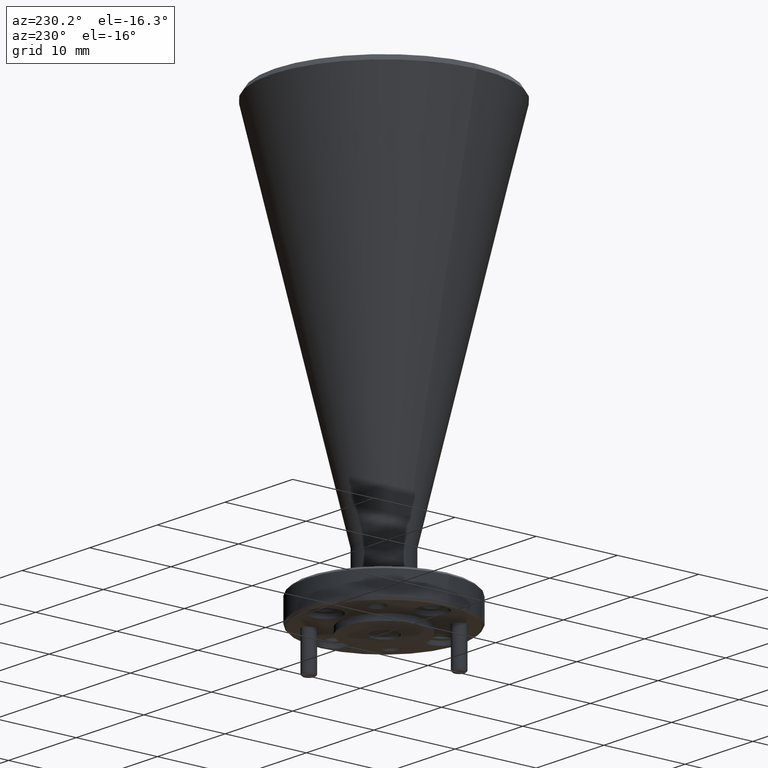
[diagram: clean part render]
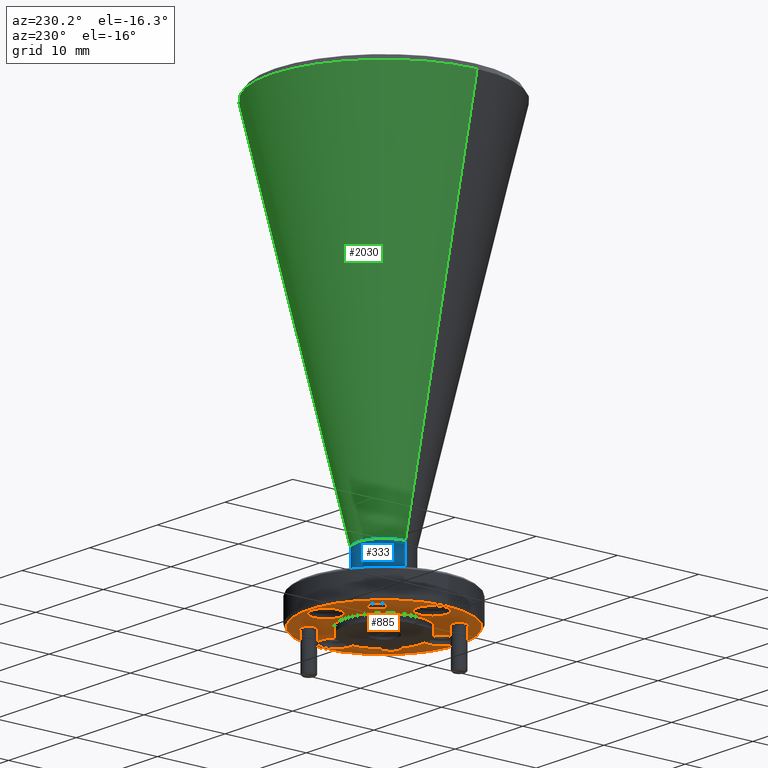
[diagram: same view with three faces highlighted in distinct colors, each labeled with its STEP entity id]
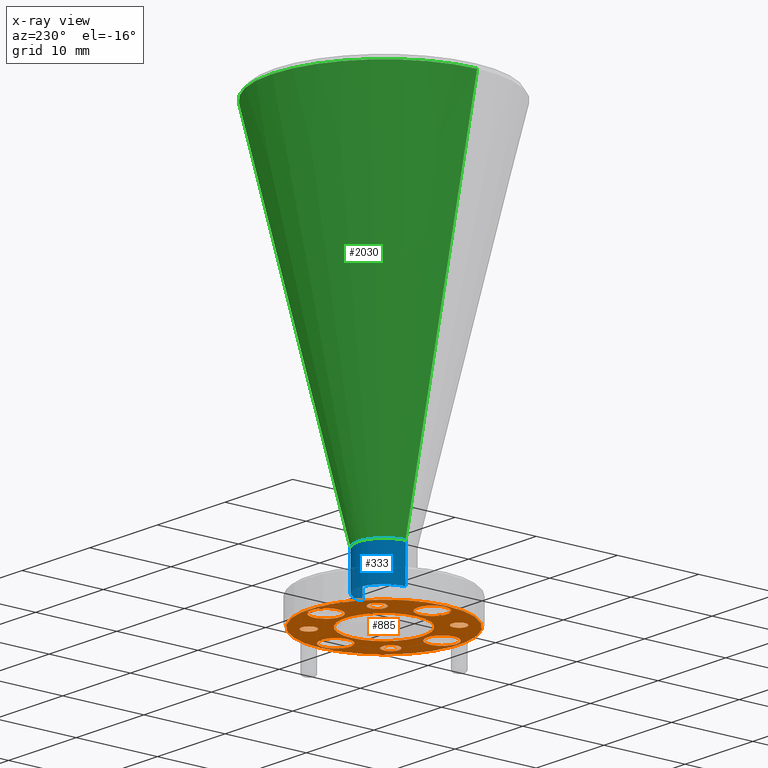
[diagram: x-ray of the same camera — body ghosted, the three highlighted faces saturated]
A machine part, auxiliary view with three faces highlighted in distinct colors.
The next image is the same camera in x-ray (body ghosted, the three faces saturated) — at least one of them is partly hidden behind the body in this view.
Their STEP definitions:

[orange] entity #885 — the highlighted planar face has unit normal (0, -0, 1).
#26 = EDGE_CURVE ( 'NONE', #391, #144, #971, .T. ) ;
#44 = EDGE_CURVE ( 'NONE', #1575, #1746, #1026, .T. ) ;
#45 = DIRECTION ( 'NONE',  ( 0.0000000000000000000, 0.0000000000000000000, -1.000000000000000000 ) ) ;
#48 = VERTEX_POINT ( 'NONE', #1759 ) ;
#68 = CIRCLE ( 'NONE', #167, 0.3650000000000017100 ) ;
#70 = FACE_BOUND ( 'NONE', #1143, .T. ) ;
#94 = AXIS2_PLACEMENT_3D ( 'NONE', #1560, #103, #1269 ) ;
#103 = DIRECTION ( 'NONE',  ( 0.0000000000000000000, 0.0000000000000000000, -1.000000000000000000 ) ) ;
#106 = ORIENTED_EDGE ( 'NONE', *, *, #1367, .T. ) ;
#144 = VERTEX_POINT ( 'NONE', #1981 ) ;
#148 = VERTEX_POINT ( 'NONE', #685 ) ;
#157 = DIRECTION ( 'NONE',  ( -1.000000000000000000, 0.0000000000000000000, 0.0000000000000000000 ) ) ;
#161 = VERTEX_POINT ( 'NONE', #848 ) ;
#164 = CIRCLE ( 'NONE', #1898, 0.03500000000000003800 ) ;
#167 = AXIS2_PLACEMENT_3D ( 'NONE', #1277, #2073, #476 ) ;
#188 = VERTEX_POINT ( 'NONE', #232 ) ;
#194 = CARTESIAN_POINT ( 'NONE',  ( -2.061298195062089400, 1.143924960471874900, -0.7094467715797542200 ) ) ;
#197 = FACE_BOUND ( 'NONE', #1427, .T. ) ;
#202 = ORIENTED_EDGE ( 'NONE', *, *, #1252, .T. ) ;
#207 = EDGE_CURVE ( 'NONE', #852, #1688, #1878, .T. ) ;
#210 = EDGE_CURVE ( 'NONE', #1855, #148, #1023, .T. ) ;
#211 = DIRECTION ( 'NONE',  ( -1.000000000000000000, 0.0000000000000000000, 0.0000000000000000000 ) ) ;
#227 = EDGE_CURVE ( 'NONE', #1746, #1575, #1583, .T. ) ;
#232 = CARTESIAN_POINT ( 'NONE',  ( -1.902424412853373200, 0.9450511782631583200, -0.7094467715797536700 ) ) ;
#242 = DIRECTION ( 'NONE',  ( 0.0000000000000000000, -0.0000000000000000000, 1.000000000000000000 ) ) ;
#260 = CARTESIAN_POINT ( 'NONE',  ( -2.061298195062089400, 0.8626749604718748600, -0.7094467715797536700 ) ) ;
#279 = AXIS2_PLACEMENT_3D ( 'NONE', #2024, #242, #1673 ) ;
#291 = DIRECTION ( 'NONE',  ( 0.0000000000000000000, 0.0000000000000000000, -1.000000000000000000 ) ) ;
#297 = CARTESIAN_POINT ( 'NONE',  ( -1.873798195062089400, 1.143924960471874900, -0.7094467715797542200 ) ) ;
#299 = CARTESIAN_POINT ( 'NONE',  ( -2.260171977270806200, 0.9450511782631583200, -0.7094467715797536700 ) ) ;
#332 = EDGE_CURVE ( 'NONE', #144, #391, #2100, .T. ) ;
#338 = ORIENTED_EDGE ( 'NONE', *, *, #1603, .F. ) ;
#341 = DIRECTION ( 'NONE',  ( -1.000000000000000000, 0.0000000000000000000, 0.0000000000000000000 ) ) ;
#366 = VERTEX_POINT ( 'NONE', #1537 ) ;
#370 = ORIENTED_EDGE ( 'NONE', *, *, #1654, .F. ) ;
#374 = CARTESIAN_POINT ( 'NONE',  ( -2.220171977270806200, 1.342798742680591400, -0.7094467715797536700 ) ) ;
#378 = DIRECTION ( 'NONE',  ( 0.0000000000000000000, 0.0000000000000000000, -1.000000000000000000 ) ) ;
#391 = VERTEX_POINT ( 'NONE', #739 ) ;
#399 = DIRECTION ( 'NONE',  ( -0.0000000000000000000, -0.0000000000000000000, 1.000000000000000000 ) ) ;
#425 = VERTEX_POINT ( 'NONE', #1563 ) ;
#430 = VERTEX_POINT ( 'NONE', #1422 ) ;
#476 = DIRECTION ( 'NONE',  ( 1.000000000000000000, 0.0000000000000000000, 0.0000000000000000000 ) ) ;
#489 = EDGE_LOOP ( 'NONE', ( #869, #1022 ) ) ;
#509 = EDGE_CURVE ( 'NONE', #161, #188, #625, .T. ) ;
#513 = CARTESIAN_POINT ( 'NONE',  ( -2.225171977270806100, 0.9450511782631583200, -0.7094467715797536700 ) ) ;
#522 = CIRCLE ( 'NONE', #1948, 0.03500000000000003800 ) ;
#555 = VERTEX_POINT ( 'NONE', #374 ) ;
#564 = DIRECTION ( 'NONE',  ( -1.000000000000000000, 0.0000000000000000000, 0.0000000000000000000 ) ) ;
#580 = DIRECTION ( 'NONE',  ( -1.000000000000000000, 0.0000000000000000000, 0.0000000000000000000 ) ) ;
#601 = VERTEX_POINT ( 'NONE', #1800 ) ;
#602 = AXIS2_PLACEMENT_3D ( 'NONE', #1599, #1584, #157 ) ;
#625 = CIRCLE ( 'NONE', #1240, 0.04000000000000011900 ) ;
#636 = AXIS2_PLACEMENT_3D ( 'NONE', #194, #1804, #986 ) ;
#653 = DIRECTION ( 'NONE',  ( -1.000000000000000000, 0.0000000000000000000, 0.0000000000000000000 ) ) ;
#667 = CIRCLE ( 'NONE', #636, 0.1875000000000001100 ) ;
#670 = DIRECTION ( 'NONE',  ( 0.0000000000000000000, 0.0000000000000000000, -1.000000000000000000 ) ) ;
#685 = CARTESIAN_POINT ( 'NONE',  ( -1.850048195062089500, 1.143924960471874900, -0.7094467715797536700 ) ) ;
#700 = FACE_OUTER_BOUND ( 'NONE', #1590, .T. ) ;
#708 = ORIENTED_EDGE ( 'NONE', *, *, #1111, .F. ) ;
#710 = CARTESIAN_POINT ( 'NONE',  ( -2.248798195062089900, 1.143924960471874900, -0.7094467715797542200 ) ) ;
#712 = AXIS2_PLACEMENT_3D ( 'NONE', #2014, #399, #1036 ) ;
#733 = ORIENTED_EDGE ( 'NONE', *, *, #26, .F. ) ;
#735 = AXIS2_PLACEMENT_3D ( 'NONE', #1095, #926, #915 ) ;
#739 = CARTESIAN_POINT ( 'NONE',  ( -1.827424412853373000, 1.342798742680591400, -0.7094467715797536700 ) ) ;
#740 = EDGE_LOOP ( 'NONE', ( #820, #1233 ) ) ;
#743 = ORIENTED_EDGE ( 'NONE', *, *, #1868, .F. ) ;
#746 = CARTESIAN_POINT ( 'NONE',  ( -1.862424412853373100, 1.342798742680591400, -0.7094467715797536700 ) ) ;
#778 = ORIENTED_EDGE ( 'NONE', *, *, #1956, .F. ) ;
#788 = EDGE_CURVE ( 'NONE', #148, #1855, #1707, .T. ) ;
#801 = FACE_BOUND ( 'NONE', #1528, .T. ) ;
#807 = CARTESIAN_POINT ( 'NONE',  ( -2.260171977270806200, 0.9450511782631583200, -0.7094467715797536700 ) ) ;
#812 = ORIENTED_EDGE ( 'NONE', *, *, #1791, .F. ) ;
#820 = ORIENTED_EDGE ( 'NONE', *, *, #1989, .F. ) ;
#838 = ORIENTED_EDGE ( 'NONE', *, *, #1323, .T. ) ;
#848 = CARTESIAN_POINT ( 'NONE',  ( -1.822424412853372900, 0.9450511782631583200, -0.7094467715797536700 ) ) ;
#852 = VERTEX_POINT ( 'NONE', #710 ) ;
#854 = DIRECTION ( 'NONE',  ( -0.0000000000000000000, -0.0000000000000000000, -1.000000000000000000 ) ) ;
#866 = VERTEX_POINT ( 'NONE', #2012 ) ;
#869 = ORIENTED_EDGE ( 'NONE', *, *, #44, .F. ) ;
#871 = CARTESIAN_POINT ( 'NONE',  ( -1.780048195062089400, 1.143924960471874900, -0.7094467715797536700 ) ) ;
#879 = CARTESIAN_POINT ( 'NONE',  ( -2.412548195062089700, 1.143924960471874900, -0.7094467715797536700 ) ) ;
#885 = ADVANCED_FACE ( 'NONE', ( #700, #197, #1229, #1492, #1178, #801, #1815, #1390, #945, #70 ), #1058, .F. ) ;
#915 = DIRECTION ( 'NONE',  ( -1.000000000000000000, 0.0000000000000000000, 0.0000000000000000000 ) ) ;
#926 = DIRECTION ( 'NONE',  ( -0.0000000000000000000, -0.0000000000000000000, -1.000000000000000000 ) ) ;
#945 = FACE_BOUND ( 'NONE', #1313, .T. ) ;
#966 = DIRECTION ( 'NONE',  ( -0.0000000000000000000, -0.0000000000000000000, -1.000000000000000000 ) ) ;
#971 = CIRCLE ( 'NONE', #1182, 0.03500000000000003800 ) ;
#986 = DIRECTION ( 'NONE',  ( 1.000000000000000000, 0.0000000000000000000, 0.0000000000000000000 ) ) ;
#989 = CARTESIAN_POINT ( 'NONE',  ( -1.862424412853373100, 0.9450511782631583200, -0.7094467715797536700 ) ) ;
#998 = AXIS2_PLACEMENT_3D ( 'NONE', #1039, #45, #211 ) ;
#999 = DIRECTION ( 'NONE',  ( -0.0000000000000000000, -0.0000000000000000000, -1.000000000000000000 ) ) ;
#1002 = CIRCLE ( 'NONE', #1883, 0.04000000000000011900 ) ;
#1004 = DIRECTION ( 'NONE',  ( -1.000000000000000000, 0.0000000000000000000, 0.0000000000000000000 ) ) ;
#1010 = DIRECTION ( 'NONE',  ( 0.0000000000000000000, 0.0000000000000000000, -1.000000000000000000 ) ) ;
#1022 = ORIENTED_EDGE ( 'NONE', *, *, #227, .F. ) ;
#1023 = CIRCLE ( 'NONE', #998, 0.07000000000000007600 ) ;
#1026 = CIRCLE ( 'NONE', #1744, 0.07000000000000007600 ) ;
#1027 = CIRCLE ( 'NONE', #94, 0.07000000000000007600 ) ;
#1028 = CIRCLE ( 'NONE', #1068, 0.07000000000000007600 ) ;
#1036 = DIRECTION ( 'NONE',  ( 1.000000000000000000, 0.0000000000000000000, 0.0000000000000000000 ) ) ;
#1039 = CARTESIAN_POINT ( 'NONE',  ( -1.780048195062089400, 1.143924960471874900, -0.7094467715797536700 ) ) ;
#1058 = PLANE ( 'NONE',  #279 ) ;
#1063 = DIRECTION ( 'NONE',  ( 0.0000000000000000000, 0.0000000000000000000, -1.000000000000000000 ) ) ;
#1068 = AXIS2_PLACEMENT_3D ( 'NONE', #260, #1063, #580 ) ;
#1077 = DIRECTION ( 'NONE',  ( -1.000000000000000000, 0.0000000000000000000, 0.0000000000000000000 ) ) ;
#1091 = VERTEX_POINT ( 'NONE', #1425 ) ;
#1095 = CARTESIAN_POINT ( 'NONE',  ( -1.862424412853373100, 0.9450511782631583200, -0.7094467715797536700 ) ) ;
#1111 = EDGE_CURVE ( 'NONE', #366, #425, #1532, .T. ) ;
#1130 = EDGE_CURVE ( 'NONE', #1354, #2025, #522, .T. ) ;
#1143 = EDGE_LOOP ( 'NONE', ( #106, #1693 ) ) ;
#1144 = DIRECTION ( 'NONE',  ( -0.0000000000000000000, -0.0000000000000000000, -1.000000000000000000 ) ) ;
#1151 = DIRECTION ( 'NONE',  ( -1.000000000000000000, 0.0000000000000000000, 0.0000000000000000000 ) ) ;
#1154 = CARTESIAN_POINT ( 'NONE',  ( -2.061298195062089400, 1.143924960471874900, -0.7094467715797536700 ) ) ;
#1165 = AXIS2_PLACEMENT_3D ( 'NONE', #1890, #291, #1077 ) ;
#1166 = CARTESIAN_POINT ( 'NONE',  ( -2.342548195062089900, 1.143924960471874900, -0.7094467715797536700 ) ) ;
#1178 = FACE_BOUND ( 'NONE', #1784, .T. ) ;
#1182 = AXIS2_PLACEMENT_3D ( 'NONE', #1817, #854, #341 ) ;
#1219 = AXIS2_PLACEMENT_3D ( 'NONE', #1154, #670, #1953 ) ;
#1229 = FACE_BOUND ( 'NONE', #740, .T. ) ;
#1232 = DIRECTION ( 'NONE',  ( -0.0000000000000000000, -0.0000000000000000000, -1.000000000000000000 ) ) ;
#1233 = ORIENTED_EDGE ( 'NONE', *, *, #1130, .F. ) ;
#1240 = AXIS2_PLACEMENT_3D ( 'NONE', #989, #1961, #1004 ) ;
#1252 = EDGE_CURVE ( 'NONE', #430, #1091, #68, .T. ) ;
#1260 = DIRECTION ( 'NONE',  ( -1.000000000000000000, 0.0000000000000000000, 0.0000000000000000000 ) ) ;
#1269 = DIRECTION ( 'NONE',  ( -1.000000000000000000, 0.0000000000000000000, 0.0000000000000000000 ) ) ;
#1277 = CARTESIAN_POINT ( 'NONE',  ( -2.061298195062089400, 1.143924960471874900, -0.7094467715797536700 ) ) ;
#1306 = CIRCLE ( 'NONE', #735, 0.04000000000000011900 ) ;
#1313 = EDGE_LOOP ( 'NONE', ( #370, #2089 ) ) ;
#1323 = EDGE_CURVE ( 'NONE', #1091, #430, #2068, .T. ) ;
#1333 = CARTESIAN_POINT ( 'NONE',  ( -2.260171977270806200, 1.342798742680591400, -0.7094467715797536700 ) ) ;
#1354 = VERTEX_POINT ( 'NONE', #513 ) ;
#1367 = EDGE_CURVE ( 'NONE', #1688, #852, #667, .T. ) ;
#1370 = CARTESIAN_POINT ( 'NONE',  ( -2.342548195062089900, 1.143924960471874900, -0.7094467715797536700 ) ) ;
#1381 = DIRECTION ( 'NONE',  ( -1.000000000000000000, 0.0000000000000000000, 0.0000000000000000000 ) ) ;
#1390 = FACE_BOUND ( 'NONE', #489, .T. ) ;
#1421 = DIRECTION ( 'NONE',  ( -0.0000000000000000000, -0.0000000000000000000, -1.000000000000000000 ) ) ;
#1422 = CARTESIAN_POINT ( 'NONE',  ( -1.696298195062087900, 1.143924960471874900, -0.7094467715797536700 ) ) ;
#1425 = CARTESIAN_POINT ( 'NONE',  ( -2.426298195062091400, 1.143924960471874900, -0.7094467715797536700 ) ) ;
#1427 = EDGE_LOOP ( 'NONE', ( #1842, #733 ) ) ;
#1434 = CARTESIAN_POINT ( 'NONE',  ( -2.295171977270806400, 0.9450511782631583200, -0.7094467715797536700 ) ) ;
#1473 = DIRECTION ( 'NONE',  ( -1.000000000000000000, 0.0000000000000000000, 0.0000000000000000000 ) ) ;
#1490 = CARTESIAN_POINT ( 'NONE',  ( -1.710048195062089400, 1.143924960471874900, -0.7094467715797536700 ) ) ;
#1492 = FACE_BOUND ( 'NONE', #1933, .T. ) ;
#1517 = DIRECTION ( 'NONE',  ( 0.0000000000000000000, 0.0000000000000000000, -1.000000000000000000 ) ) ;
#1523 = DIRECTION ( 'NONE',  ( -1.000000000000000000, 0.0000000000000000000, 0.0000000000000000000 ) ) ;
#1528 = EDGE_LOOP ( 'NONE', ( #1799, #1602 ) ) ;
#1532 = CIRCLE ( 'NONE', #602, 0.07000000000000007600 ) ;
#1537 = CARTESIAN_POINT ( 'NONE',  ( -2.131298195062089700, 0.8626749604718748600, -0.7094467715797536700 ) ) ;
#1560 = CARTESIAN_POINT ( 'NONE',  ( -2.061298195062089400, 1.425174960471875100, -0.7094467715797536700 ) ) ;
#1563 = CARTESIAN_POINT ( 'NONE',  ( -1.991298195062089600, 0.8626749604718748600, -0.7094467715797536700 ) ) ;
#1575 = VERTEX_POINT ( 'NONE', #879 ) ;
#1583 = CIRCLE ( 'NONE', #1793, 0.07000000000000007600 ) ;
#1584 = DIRECTION ( 'NONE',  ( 0.0000000000000000000, 0.0000000000000000000, -1.000000000000000000 ) ) ;
#1590 = EDGE_LOOP ( 'NONE', ( #202, #838 ) ) ;
#1599 = CARTESIAN_POINT ( 'NONE',  ( -2.061298195062089400, 0.8626749604718748600, -0.7094467715797536700 ) ) ;
#1602 = ORIENTED_EDGE ( 'NONE', *, *, #210, .F. ) ;
#1603 = EDGE_CURVE ( 'NONE', #425, #366, #1028, .T. ) ;
#1642 = ORIENTED_EDGE ( 'NONE', *, *, #509, .F. ) ;
#1654 = EDGE_CURVE ( 'NONE', #48, #866, #1027, .T. ) ;
#1673 = DIRECTION ( 'NONE',  ( 1.000000000000000000, 0.0000000000000000000, 0.0000000000000000000 ) ) ;
#1688 = VERTEX_POINT ( 'NONE', #297 ) ;
#1693 = ORIENTED_EDGE ( 'NONE', *, *, #207, .T. ) ;
#1698 = AXIS2_PLACEMENT_3D ( 'NONE', #871, #1517, #564 ) ;
#1707 = CIRCLE ( 'NONE', #1698, 0.07000000000000007600 ) ;
#1740 = AXIS2_PLACEMENT_3D ( 'NONE', #1819, #1144, #1151 ) ;
#1744 = AXIS2_PLACEMENT_3D ( 'NONE', #1166, #1010, #1473 ) ;
#1746 = VERTEX_POINT ( 'NONE', #1778 ) ;
#1759 = CARTESIAN_POINT ( 'NONE',  ( -2.131298195062089700, 1.425174960471875100, -0.7094467715797536700 ) ) ;
#1778 = CARTESIAN_POINT ( 'NONE',  ( -2.272548195062089600, 1.143924960471874900, -0.7094467715797536700 ) ) ;
#1780 = CIRCLE ( 'NONE', #1740, 0.04000000000000011900 ) ;
#1784 = EDGE_LOOP ( 'NONE', ( #778, #1642 ) ) ;
#1791 = EDGE_CURVE ( 'NONE', #555, #601, #1780, .T. ) ;
#1793 = AXIS2_PLACEMENT_3D ( 'NONE', #1370, #378, #1523 ) ;
#1799 = ORIENTED_EDGE ( 'NONE', *, *, #788, .F. ) ;
#1800 = CARTESIAN_POINT ( 'NONE',  ( -2.300171977270806200, 1.342798742680591400, -0.7094467715797536700 ) ) ;
#1804 = DIRECTION ( 'NONE',  ( -0.0000000000000000000, -0.0000000000000000000, 1.000000000000000000 ) ) ;
#1815 = FACE_BOUND ( 'NONE', #1995, .T. ) ;
#1817 = CARTESIAN_POINT ( 'NONE',  ( -1.862424412853373100, 1.342798742680591400, -0.7094467715797536700 ) ) ;
#1819 = CARTESIAN_POINT ( 'NONE',  ( -2.260171977270806200, 1.342798742680591400, -0.7094467715797536700 ) ) ;
#1825 = AXIS2_PLACEMENT_3D ( 'NONE', #746, #1232, #1381 ) ;
#1842 = ORIENTED_EDGE ( 'NONE', *, *, #332, .F. ) ;
#1855 = VERTEX_POINT ( 'NONE', #1490 ) ;
#1868 = EDGE_CURVE ( 'NONE', #601, #555, #1002, .T. ) ;
#1878 = CIRCLE ( 'NONE', #712, 0.1875000000000001100 ) ;
#1883 = AXIS2_PLACEMENT_3D ( 'NONE', #1333, #999, #653 ) ;
#1890 = CARTESIAN_POINT ( 'NONE',  ( -2.061298195062089400, 1.425174960471875100, -0.7094467715797536700 ) ) ;
#1898 = AXIS2_PLACEMENT_3D ( 'NONE', #299, #1421, #1260 ) ;
#1933 = EDGE_LOOP ( 'NONE', ( #743, #812 ) ) ;
#1948 = AXIS2_PLACEMENT_3D ( 'NONE', #807, #966, #2106 ) ;
#1953 = DIRECTION ( 'NONE',  ( 1.000000000000000000, 0.0000000000000000000, 0.0000000000000000000 ) ) ;
#1956 = EDGE_CURVE ( 'NONE', #188, #161, #1306, .T. ) ;
#1961 = DIRECTION ( 'NONE',  ( -0.0000000000000000000, -0.0000000000000000000, -1.000000000000000000 ) ) ;
#1973 = EDGE_CURVE ( 'NONE', #866, #48, #2094, .T. ) ;
#1981 = CARTESIAN_POINT ( 'NONE',  ( -1.897424412853373000, 1.342798742680591400, -0.7094467715797536700 ) ) ;
#1989 = EDGE_CURVE ( 'NONE', #2025, #1354, #164, .T. ) ;
#1995 = EDGE_LOOP ( 'NONE', ( #708, #338 ) ) ;
#2012 = CARTESIAN_POINT ( 'NONE',  ( -1.991298195062089600, 1.425174960471875100, -0.7094467715797536700 ) ) ;
#2014 = CARTESIAN_POINT ( 'NONE',  ( -2.061298195062089400, 1.143924960471874900, -0.7094467715797542200 ) ) ;
#2024 = CARTESIAN_POINT ( 'NONE',  ( -2.061298195062089400, 1.518924960471874900, -0.7094467715797536700 ) ) ;
#2025 = VERTEX_POINT ( 'NONE', #1434 ) ;
#2068 = CIRCLE ( 'NONE', #1219, 0.3650000000000017100 ) ;
#2073 = DIRECTION ( 'NONE',  ( 0.0000000000000000000, 0.0000000000000000000, -1.000000000000000000 ) ) ;
#2089 = ORIENTED_EDGE ( 'NONE', *, *, #1973, .F. ) ;
#2094 = CIRCLE ( 'NONE', #1165, 0.07000000000000007600 ) ;
#2100 = CIRCLE ( 'NONE', #1825, 0.03500000000000003800 ) ;
#2106 = DIRECTION ( 'NONE',  ( -1.000000000000000000, 0.0000000000000000000, 0.0000000000000000000 ) ) ;

[blue] entity #333 — the highlighted cylindrical surface (edge-blend (fillet) strip) has radius 3.175 mm, axis along (-0, -0, 1).
#80 = DIRECTION ( 'NONE',  ( -0.0000000000000000000, -0.0000000000000000000, 1.000000000000000000 ) ) ;
#182 = EDGE_CURVE ( 'NONE', #1736, #1000, #1631, .T. ) ;
#222 = DIRECTION ( 'NONE',  ( -0.0000000000000000000, -0.0000000000000000000, 1.000000000000000000 ) ) ;
#307 = CARTESIAN_POINT ( 'NONE',  ( -2.186298195062089400, 1.143924960471874900, 4.395099635446578100 ) ) ;
#325 = CARTESIAN_POINT ( 'NONE',  ( -1.936298195062089700, 1.143924960471874900, -0.4013685743280536700 ) ) ;
#333 = ADVANCED_FACE ( 'NONE', ( #1081 ), #1391, .T. ) ;
#349 = VERTEX_POINT ( 'NONE', #1880 ) ;
#373 = CARTESIAN_POINT ( 'NONE',  ( -2.186298195062089400, 1.143924960471874900, -0.5794467715797532200 ) ) ;
#436 = EDGE_LOOP ( 'NONE', ( #583, #1330, #1647, #1050 ) ) ;
#583 = ORIENTED_EDGE ( 'NONE', *, *, #736, .T. ) ;
#600 = AXIS2_PLACEMENT_3D ( 'NONE', #865, #1350, #1689 ) ;
#736 = EDGE_CURVE ( 'NONE', #349, #1863, #1858, .T. ) ;
#865 = CARTESIAN_POINT ( 'NONE',  ( -2.061298195062089400, 1.143924960471874900, -0.4013685743280536700 ) ) ;
#874 = AXIS2_PLACEMENT_3D ( 'NONE', #1047, #80, #2035 ) ;
#893 = LINE ( 'NONE', #1449, #1366 ) ;
#1000 = VERTEX_POINT ( 'NONE', #2042 ) ;
#1016 = CARTESIAN_POINT ( 'NONE',  ( -2.061298195062089400, 1.143924960471874900, -0.5794467715797532200 ) ) ;
#1047 = CARTESIAN_POINT ( 'NONE',  ( -2.061298195062089400, 1.143924960471874900, 4.395099635446578100 ) ) ;
#1048 = VECTOR ( 'NONE', #1123, 39.37007874015748100 ) ;
#1049 = AXIS2_PLACEMENT_3D ( 'NONE', #1016, #222, #1513 ) ;
#1050 = ORIENTED_EDGE ( 'NONE', *, *, #1060, .F. ) ;
#1060 = EDGE_CURVE ( 'NONE', #349, #1736, #893, .T. ) ;
#1081 = FACE_OUTER_BOUND ( 'NONE', #436, .T. ) ;
#1123 = DIRECTION ( 'NONE',  ( -0.0000000000000000000, -0.0000000000000000000, 1.000000000000000000 ) ) ;
#1281 = LINE ( 'NONE', #307, #1048 ) ;
#1291 = DIRECTION ( 'NONE',  ( -0.0000000000000000000, -0.0000000000000000000, 1.000000000000000000 ) ) ;
#1330 = ORIENTED_EDGE ( 'NONE', *, *, #1717, .T. ) ;
#1350 = DIRECTION ( 'NONE',  ( -0.0000000000000000000, -0.0000000000000000000, 1.000000000000000000 ) ) ;
#1366 = VECTOR ( 'NONE', #1291, 39.37007874015748100 ) ;
#1391 = CYLINDRICAL_SURFACE ( 'NONE', #874, 0.1249999999999999000 ) ;
#1449 = CARTESIAN_POINT ( 'NONE',  ( -1.936298195062089700, 1.143924960471874900, 4.395099635446578100 ) ) ;
#1513 = DIRECTION ( 'NONE',  ( 1.000000000000000000, 0.0000000000000000000, 0.0000000000000000000 ) ) ;
#1631 = CIRCLE ( 'NONE', #600, 0.1249999999999999000 ) ;
#1647 = ORIENTED_EDGE ( 'NONE', *, *, #182, .F. ) ;
#1689 = DIRECTION ( 'NONE',  ( 1.000000000000000000, 0.0000000000000000000, 0.0000000000000000000 ) ) ;
#1717 = EDGE_CURVE ( 'NONE', #1863, #1000, #1281, .T. ) ;
#1736 = VERTEX_POINT ( 'NONE', #325 ) ;
#1858 = CIRCLE ( 'NONE', #1049, 0.1249999999999999000 ) ;
#1863 = VERTEX_POINT ( 'NONE', #373 ) ;
#1880 = CARTESIAN_POINT ( 'NONE',  ( -1.936298195062089700, 1.143924960471874900, -0.5794467715797532200 ) ) ;
#2035 = DIRECTION ( 'NONE',  ( 1.000000000000000000, 0.0000000000000000000, 0.0000000000000000000 ) ) ;
#2042 = CARTESIAN_POINT ( 'NONE',  ( -2.186298195062089400, 1.143924960471874900, -0.4013685743280536700 ) ) ;

[green] entity #2030 — the highlighted conical surface has half-angle 13.5 deg.
#171 = CIRCLE ( 'NONE', #2059, 0.5421638659036025500 ) ;
#182 = EDGE_CURVE ( 'NONE', #1736, #1000, #1631, .T. ) ;
#309 = DIRECTION ( 'NONE',  ( 0.2334453638558986700, 0.0000000000000000000, 0.9723699203976782200 ) ) ;
#316 = DIRECTION ( 'NONE',  ( 0.0000000000000000000, 0.0000000000000000000, -1.000000000000000000 ) ) ;
#325 = CARTESIAN_POINT ( 'NONE',  ( -1.936298195062089700, 1.143924960471874900, -0.4013685743280536700 ) ) ;
#455 = DIRECTION ( 'NONE',  ( -1.000000000000000000, 0.0000000000000000000, 0.0000000000000000000 ) ) ;
#600 = AXIS2_PLACEMENT_3D ( 'NONE', #865, #1350, #1689 ) ;
#613 = DIRECTION ( 'NONE',  ( 1.000000000000000000, 0.0000000000000000000, 0.0000000000000000000 ) ) ;
#732 = VERTEX_POINT ( 'NONE', #2006 ) ;
#817 = ORIENTED_EDGE ( 'NONE', *, *, #182, .T. ) ;
#865 = CARTESIAN_POINT ( 'NONE',  ( -2.061298195062089400, 1.143924960471874900, -0.4013685743280536700 ) ) ;
#900 = ORIENTED_EDGE ( 'NONE', *, *, #1760, .T. ) ;
#941 = CARTESIAN_POINT ( 'NONE',  ( -1.936298195062089700, 1.143924960471874900, -0.4013685743280536700 ) ) ;
#947 = DIRECTION ( 'NONE',  ( -0.2334453638558986700, 2.858881176219155100E-017, 0.9723699203976782200 ) ) ;
#1000 = VERTEX_POINT ( 'NONE', #2042 ) ;
#1030 = LINE ( 'NONE', #941, #1582 ) ;
#1115 = EDGE_CURVE ( 'NONE', #1566, #732, #171, .T. ) ;
#1157 = EDGE_CURVE ( 'NONE', #1736, #732, #1030, .T. ) ;
#1284 = CARTESIAN_POINT ( 'NONE',  ( -2.061298195062089400, 1.143924960471874900, 1.336243980410304800 ) ) ;
#1304 = CARTESIAN_POINT ( 'NONE',  ( -2.186298195062089400, 1.143924960471874900, -0.4013685743280536700 ) ) ;
#1350 = DIRECTION ( 'NONE',  ( -0.0000000000000000000, -0.0000000000000000000, 1.000000000000000000 ) ) ;
#1374 = ORIENTED_EDGE ( 'NONE', *, *, #1115, .T. ) ;
#1428 = CARTESIAN_POINT ( 'NONE',  ( -2.061298195062089400, 1.143924960471874900, -0.4013685743280536700 ) ) ;
#1485 = LINE ( 'NONE', #1304, #1750 ) ;
#1530 = CONICAL_SURFACE ( 'NONE', #1601, 0.1249999999999999000, 0.2356194490192275700 ) ;
#1539 = CARTESIAN_POINT ( 'NONE',  ( -2.603462060965692000, 1.143924960471874900, 1.336243980410304800 ) ) ;
#1566 = VERTEX_POINT ( 'NONE', #1539 ) ;
#1582 = VECTOR ( 'NONE', #309, 39.37007874015748100 ) ;
#1601 = AXIS2_PLACEMENT_3D ( 'NONE', #1428, #2051, #613 ) ;
#1631 = CIRCLE ( 'NONE', #600, 0.1249999999999999000 ) ;
#1652 = FACE_OUTER_BOUND ( 'NONE', #2103, .T. ) ;
#1689 = DIRECTION ( 'NONE',  ( 1.000000000000000000, 0.0000000000000000000, 0.0000000000000000000 ) ) ;
#1736 = VERTEX_POINT ( 'NONE', #325 ) ;
#1750 = VECTOR ( 'NONE', #947, 39.37007874015748100 ) ;
#1760 = EDGE_CURVE ( 'NONE', #1000, #1566, #1485, .T. ) ;
#1923 = ORIENTED_EDGE ( 'NONE', *, *, #1157, .F. ) ;
#2006 = CARTESIAN_POINT ( 'NONE',  ( -1.519134329158486900, 1.143924960471874900, 1.336243980410304800 ) ) ;
#2030 = ADVANCED_FACE ( 'NONE', ( #1652 ), #1530, .T. ) ;
#2042 = CARTESIAN_POINT ( 'NONE',  ( -2.186298195062089400, 1.143924960471874900, -0.4013685743280536700 ) ) ;
#2051 = DIRECTION ( 'NONE',  ( -0.0000000000000000000, -0.0000000000000000000, 1.000000000000000000 ) ) ;
#2059 = AXIS2_PLACEMENT_3D ( 'NONE', #1284, #316, #455 ) ;
#2103 = EDGE_LOOP ( 'NONE', ( #817, #900, #1374, #1923 ) ) ;